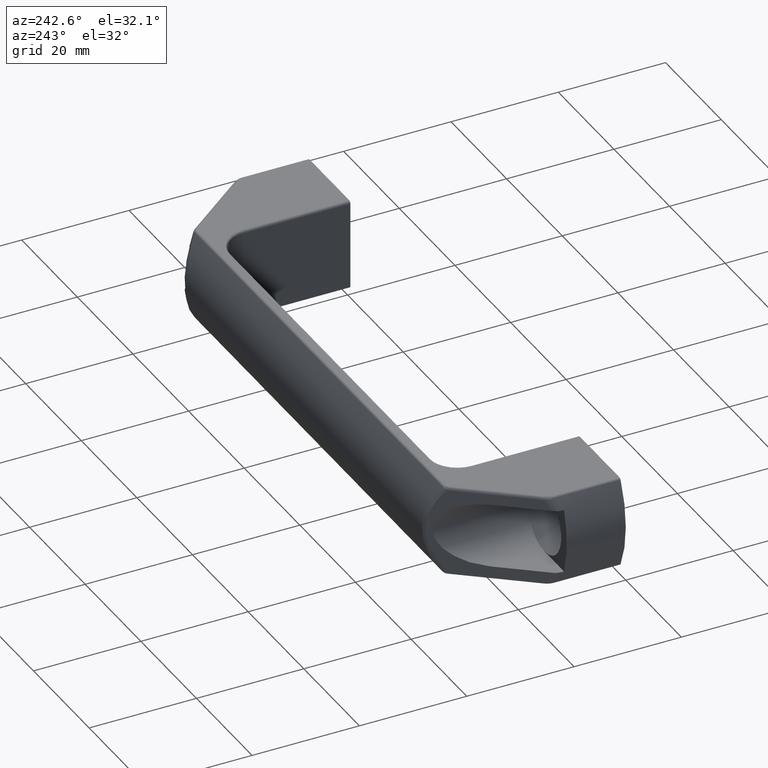
[diagram: clean part render]
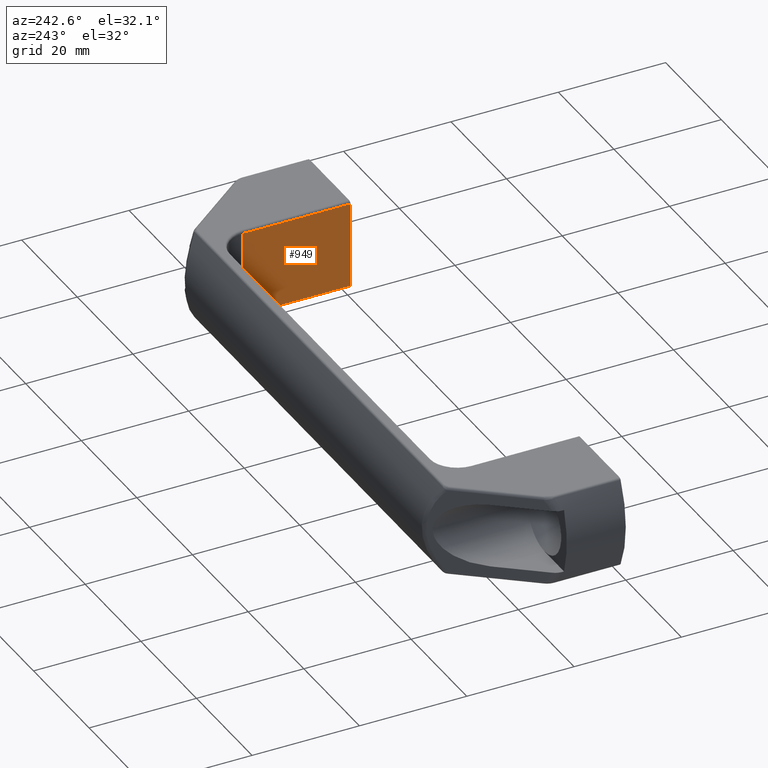
[diagram: same view with one face highlighted and labeled with its STEP entity id]
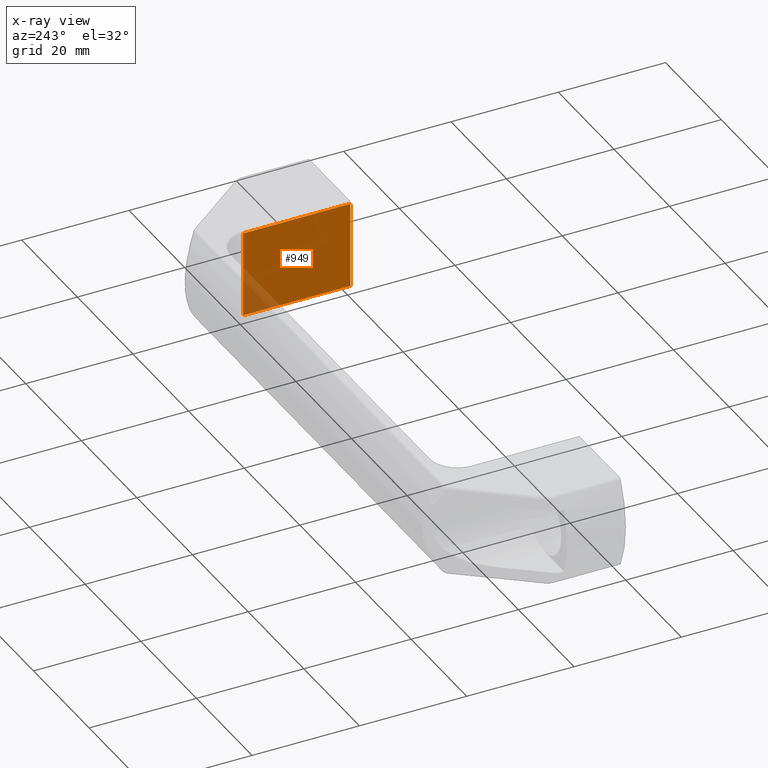
[diagram: x-ray of the same camera — body ghosted, the highlighted face saturated]
A machine part, auxiliary view. The second image highlights one B-rep face of the part: STEP entity #949.
The next image is the same camera in x-ray: the body ghosted, the highlighted face saturated — about 10% of this face is hidden behind the body in this view.
In plain terms, the highlighted planar face has unit normal (-1, 0, 0).
Its self-contained STEP definition (entity closure, byte-faithful):
#74=LINE('',#1446,#132);
#76=LINE('',#1452,#134);
#84=LINE('',#1481,#142);
#88=LINE('',#1500,#146);
#132=VECTOR('',#1170,20.);
#134=VECTOR('',#1176,16.);
#142=VECTOR('',#1206,20.);
#146=VECTOR('',#1232,16.);
#187=PLANE('',#1043);
#249=FACE_OUTER_BOUND('',#314,.T.);
#314=EDGE_LOOP('',(#718,#719,#720,#721));
#425=VERTEX_POINT('',#1436);
#427=VERTEX_POINT('',#1442);
#430=VERTEX_POINT('',#1450);
#440=VERTEX_POINT('',#1479);
#521=EDGE_CURVE('',#425,#427,#74,.T.);
#524=EDGE_CURVE('',#430,#425,#76,.T.);
#538=EDGE_CURVE('',#440,#430,#84,.T.);
#548=EDGE_CURVE('',#440,#427,#88,.T.);
#718=ORIENTED_EDGE('',*,*,#521,.F.);
#719=ORIENTED_EDGE('',*,*,#524,.F.);
#720=ORIENTED_EDGE('',*,*,#538,.F.);
#721=ORIENTED_EDGE('',*,*,#548,.T.);
#949=ADVANCED_FACE('',(#249),#187,.T.);
#1043=AXIS2_PLACEMENT_3D('',#1499,#1230,#1231);
#1170=DIRECTION('',(0.,-1.,0.));
#1176=DIRECTION('',(0.,0.,1.));
#1206=DIRECTION('',(0.,1.,0.));
#1230=DIRECTION('center_axis',(-1.,0.,0.));
#1231=DIRECTION('ref_axis',(0.,-1.,0.));
#1232=DIRECTION('',(0.,0.,1.));
#1436=CARTESIAN_POINT('',(99.,20.,8.));
#1442=CARTESIAN_POINT('',(99.,-1.04083408558608E-15,8.));
#1446=CARTESIAN_POINT('',(99.,19.8133448529482,8.));
#1450=CARTESIAN_POINT('',(99.,20.,-8.));
#1452=CARTESIAN_POINT('',(99.,20.,0.));
#1479=CARTESIAN_POINT('',(99.,-1.04083408558608E-15,-8.));
#1481=CARTESIAN_POINT('',(99.,19.8133448529482,-8.));
#1499=CARTESIAN_POINT('Origin',(99.,20.,0.));
#1500=CARTESIAN_POINT('',(99.,-1.04083408558608E-15,0.));